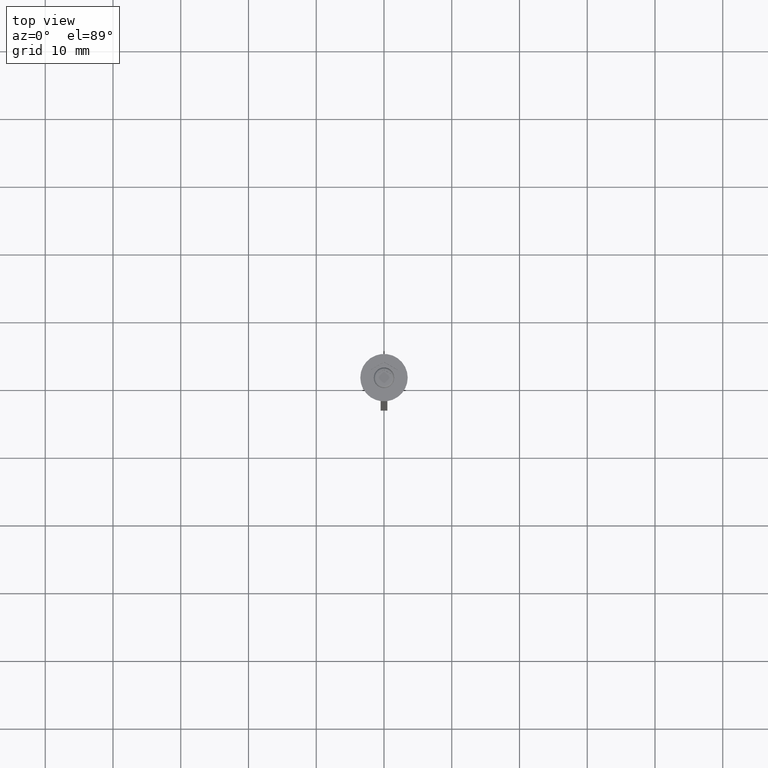
[diagram: clean part render]
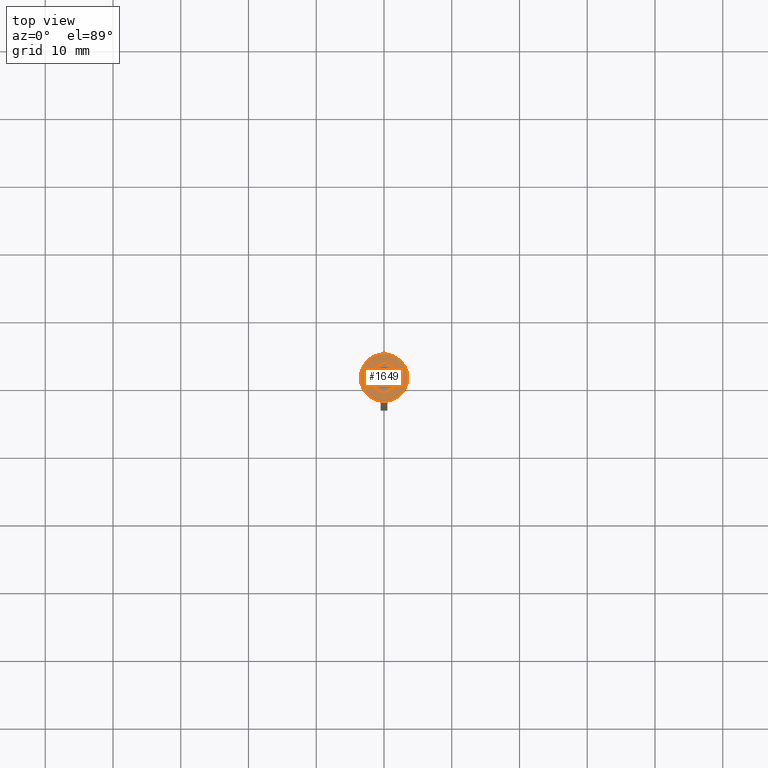
[diagram: same view with one face highlighted and labeled with its STEP entity id]
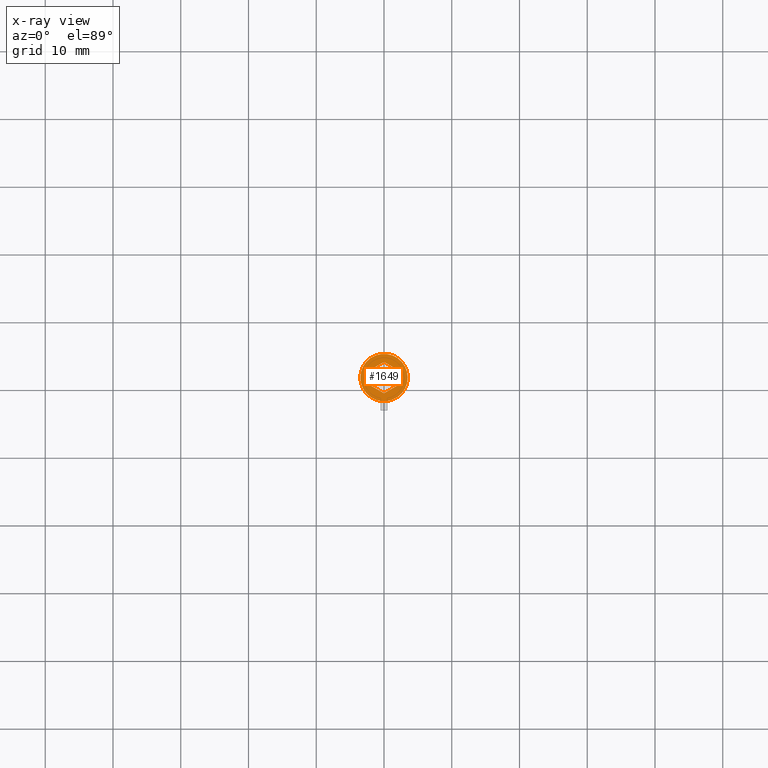
[diagram: x-ray of the same camera — body ghosted, the highlighted face saturated]
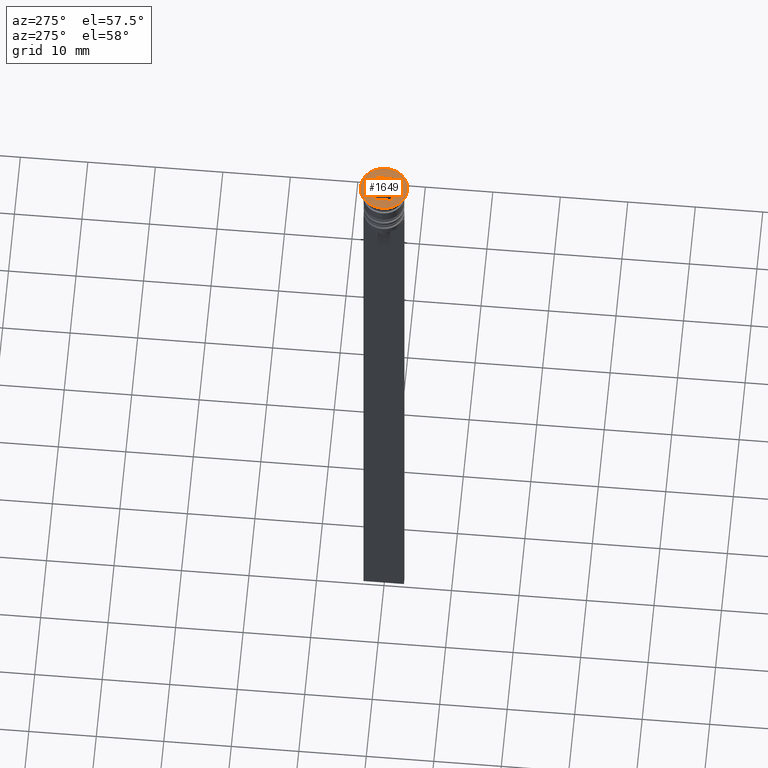
[diagram: same view with one face highlighted and labeled with its STEP entity id]
A machine part, top view. The second image highlights one B-rep face of the part: STEP entity #1649.
The next image is the same camera in x-ray: the body ghosted, the highlighted face saturated — about 0% of this face is hidden behind the body in this view.
A second angle (auxiliary view) of the same face is appended — the face is thin or edge-on in the first view.
In plain terms, the highlighted planar face has unit normal (0, -0, 1).
Its self-contained STEP definition (entity closure, byte-faithful):
#71 = EDGE_CURVE ( 'NONE', #796, #1702, #736, .T. ) ;
#91 = AXIS2_PLACEMENT_3D ( 'NONE', #2000, #1810, #1417 ) ;
#113 = DIRECTION ( 'NONE',  ( 0.000000000000000000, 1.000000000000000000, 0.000000000000000000 ) ) ;
#125 = VERTEX_POINT ( 'NONE', #1590 ) ;
#127 = EDGE_LOOP ( 'NONE', ( #1461, #1860 ) ) ;
#149 = DIRECTION ( 'NONE',  ( 0.8660254037844384856, 0.5000000000000001110, 0.000000000000000000 ) ) ;
#155 = AXIS2_PLACEMENT_3D ( 'NONE', #855, #2280, #1213 ) ;
#168 = DIRECTION ( 'NONE',  ( 0.000000000000000000, -1.000000000000000000, 0.000000000000000000 ) ) ;
#225 = CARTESIAN_POINT ( 'NONE',  ( -3.500000000000000000, 4.286263797015736595E-16, 0.000000000000000000 ) ) ;
#258 = DIRECTION ( 'NONE',  ( 0.8660254037844387076, -0.4999999999999997780, 0.000000000000000000 ) ) ;
#299 = VERTEX_POINT ( 'NONE', #2170 ) ;
#308 = VECTOR ( 'NONE', #113, 1000.000000000000000 ) ;
#310 = EDGE_CURVE ( 'NONE', #433, #299, #496, .T. ) ;
#376 = EDGE_LOOP ( 'NONE', ( #1071, #2055, #928, #1381, #456, #1907 ) ) ;
#380 = FACE_OUTER_BOUND ( 'NONE', #127, .T. ) ;
#433 = VERTEX_POINT ( 'NONE', #225 ) ;
#438 = CARTESIAN_POINT ( 'NONE',  ( 2.000000000000000000, -1.154700538379251684, 0.000000000000000000 ) ) ;
#456 = ORIENTED_EDGE ( 'NONE', *, *, #2111, .F. ) ;
#457 = LINE ( 'NONE', #1719, #1358 ) ;
#496 = CIRCLE ( 'NONE', #91, 3.500000000000000000 ) ;
#552 = VERTEX_POINT ( 'NONE', #822 ) ;
#555 = DIRECTION ( 'NONE',  ( 1.000000000000000000, 0.000000000000000000, 0.000000000000000000 ) ) ;
#639 = LINE ( 'NONE', #438, #308 ) ;
#653 = EDGE_CURVE ( 'NONE', #299, #433, #1132, .T. ) ;
#666 = CARTESIAN_POINT ( 'NONE',  ( -2.000000000000000000, -1.154700538379252128, 0.000000000000000000 ) ) ;
#689 = CARTESIAN_POINT ( 'NONE',  ( -2.000000000000000000, 1.154700538379251018, 0.000000000000000000 ) ) ;
#705 = LINE ( 'NONE', #689, #1923 ) ;
#736 = LINE ( 'NONE', #1447, #1141 ) ;
#779 = CARTESIAN_POINT ( 'NONE',  ( -2.000000000000000000, -1.154700538379252128, 0.000000000000000000 ) ) ;
#796 = VERTEX_POINT ( 'NONE', #1160 ) ;
#822 = CARTESIAN_POINT ( 'NONE',  ( -2.000000000000000000, 1.154700538379251018, 0.000000000000000000 ) ) ;
#855 = CARTESIAN_POINT ( 'NONE',  ( 0.000000000000000000, 0.000000000000000000, 0.000000000000000000 ) ) ;
#920 = CARTESIAN_POINT ( 'NONE',  ( -2.168404344971008868E-16, 2.309401076758502480, 0.000000000000000000 ) ) ;
#928 = ORIENTED_EDGE ( 'NONE', *, *, #2037, .F. ) ;
#941 = LINE ( 'NONE', #2167, #1068 ) ;
#977 = EDGE_CURVE ( 'NONE', #1757, #995, #1340, .T. ) ;
#995 = VERTEX_POINT ( 'NONE', #2091 ) ;
#1068 = VECTOR ( 'NONE', #1128, 1000.000000000000000 ) ;
#1071 = ORIENTED_EDGE ( 'NONE', *, *, #71, .F. ) ;
#1104 = PLANE ( 'NONE',  #1811 ) ;
#1128 = DIRECTION ( 'NONE',  ( -0.8660254037844387076, -0.4999999999999999445, 0.000000000000000000 ) ) ;
#1132 = CIRCLE ( 'NONE', #155, 3.500000000000000000 ) ;
#1141 = VECTOR ( 'NONE', #1278, 1000.000000000000000 ) ;
#1160 = CARTESIAN_POINT ( 'NONE',  ( 2.000000000000000000, 1.154700538379251240, 0.000000000000000000 ) ) ;
#1213 = DIRECTION ( 'NONE',  ( 1.000000000000000000, 0.000000000000000000, 0.000000000000000000 ) ) ;
#1278 = DIRECTION ( 'NONE',  ( -0.8660254037844387076, 0.4999999999999998890, 0.000000000000000000 ) ) ;
#1340 = LINE ( 'NONE', #779, #1464 ) ;
#1358 = VECTOR ( 'NONE', #149, 1000.000000000000227 ) ;
#1381 = ORIENTED_EDGE ( 'NONE', *, *, #977, .F. ) ;
#1417 = DIRECTION ( 'NONE',  ( 1.000000000000000000, 0.000000000000000000, 0.000000000000000000 ) ) ;
#1419 = DIRECTION ( 'NONE',  ( 0.000000000000000000, -0.000000000000000000, 1.000000000000000000 ) ) ;
#1447 = CARTESIAN_POINT ( 'NONE',  ( 2.000000000000000000, 1.154700538379251240, 0.000000000000000000 ) ) ;
#1461 = ORIENTED_EDGE ( 'NONE', *, *, #653, .T. ) ;
#1464 = VECTOR ( 'NONE', #258, 1000.000000000000114 ) ;
#1590 = CARTESIAN_POINT ( 'NONE',  ( 2.000000000000000000, -1.154700538379251684, 0.000000000000000000 ) ) ;
#1649 = ADVANCED_FACE ( 'NONE', ( #2171, #380 ), #1104, .T. ) ;
#1702 = VERTEX_POINT ( 'NONE', #920 ) ;
#1719 = CARTESIAN_POINT ( 'NONE',  ( 3.997386383800531884E-16, -2.309401076758503368, 0.000000000000000000 ) ) ;
#1757 = VERTEX_POINT ( 'NONE', #666 ) ;
#1810 = DIRECTION ( 'NONE',  ( -0.000000000000000000, -0.000000000000000000, 1.000000000000000000 ) ) ;
#1811 = AXIS2_PLACEMENT_3D ( 'NONE', #1815, #1419, #555 ) ;
#1815 = CARTESIAN_POINT ( 'NONE',  ( 0.000000000000000000, 0.000000000000000000, 0.000000000000000000 ) ) ;
#1860 = ORIENTED_EDGE ( 'NONE', *, *, #310, .T. ) ;
#1907 = ORIENTED_EDGE ( 'NONE', *, *, #1992, .F. ) ;
#1923 = VECTOR ( 'NONE', #168, 1000.000000000000000 ) ;
#1992 = EDGE_CURVE ( 'NONE', #1702, #552, #941, .T. ) ;
#2000 = CARTESIAN_POINT ( 'NONE',  ( 0.000000000000000000, 0.000000000000000000, 0.000000000000000000 ) ) ;
#2037 = EDGE_CURVE ( 'NONE', #995, #125, #457, .T. ) ;
#2055 = ORIENTED_EDGE ( 'NONE', *, *, #2213, .F. ) ;
#2091 = CARTESIAN_POINT ( 'NONE',  ( 3.997386383800531884E-16, -2.309401076758503368, 0.000000000000000000 ) ) ;
#2111 = EDGE_CURVE ( 'NONE', #552, #1757, #705, .T. ) ;
#2167 = CARTESIAN_POINT ( 'NONE',  ( 0.000000000000000000, 2.309401076758502480, 0.000000000000000000 ) ) ;
#2170 = CARTESIAN_POINT ( 'NONE',  ( 3.500000000000000000, 0.000000000000000000, 0.000000000000000000 ) ) ;
#2171 = FACE_BOUND ( 'NONE', #376, .T. ) ;
#2213 = EDGE_CURVE ( 'NONE', #125, #796, #639, .T. ) ;
#2280 = DIRECTION ( 'NONE',  ( -0.000000000000000000, -0.000000000000000000, 1.000000000000000000 ) ) ;